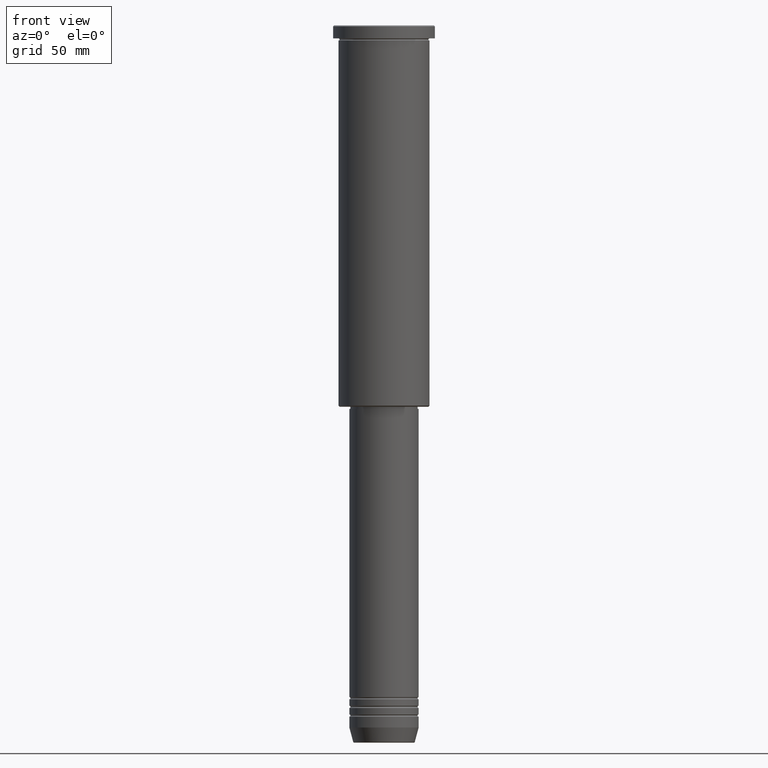
[diagram: clean part render]
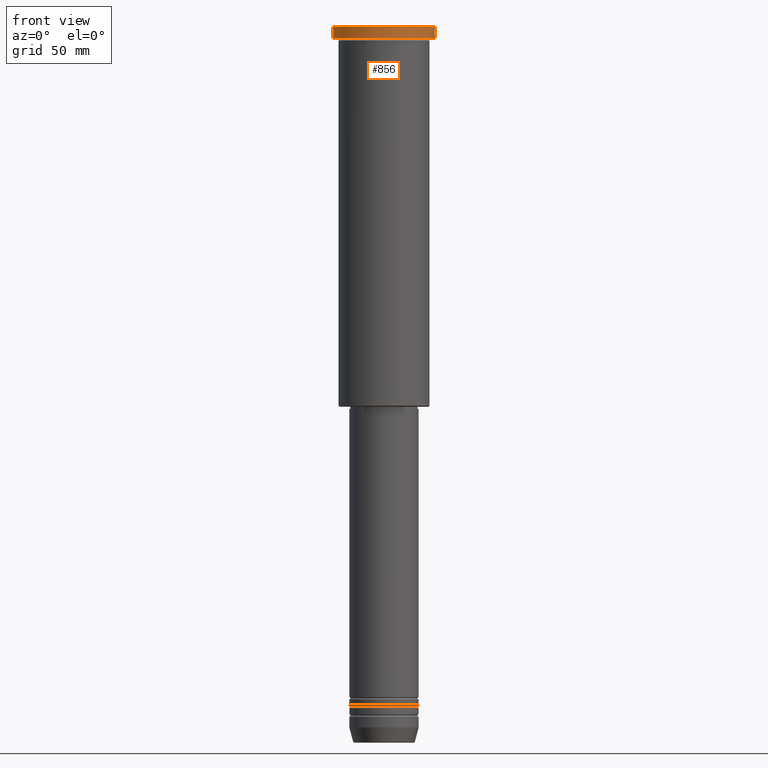
[diagram: same view with one face highlighted and labeled with its STEP entity id]
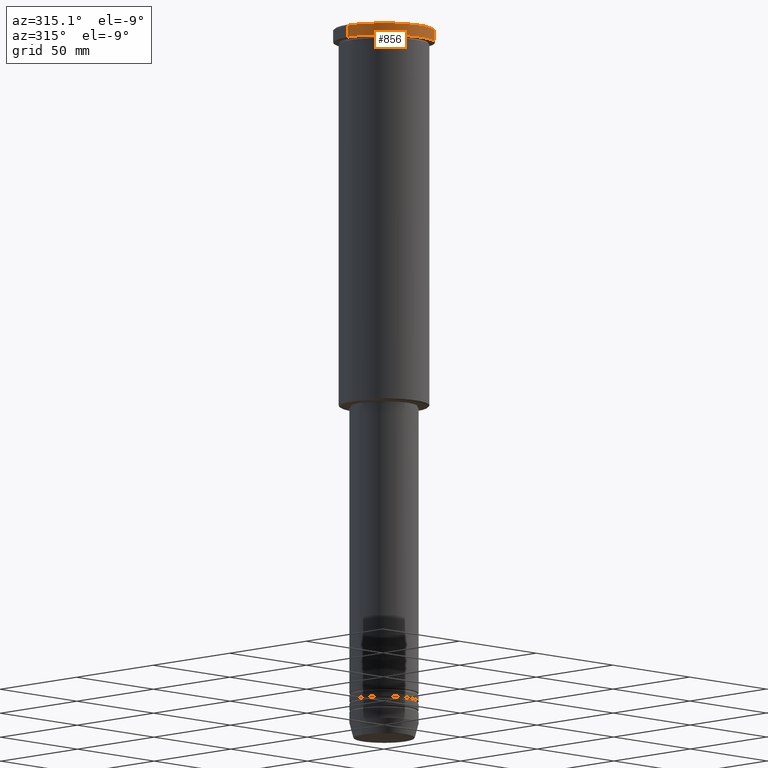
[diagram: same view with one face highlighted and labeled with its STEP entity id]
A machine part, front view. The second image highlights one B-rep face of the part: STEP entity #856.
A second angle (auxiliary view) of the same face is appended — the face is thin or edge-on in the first view.
In plain terms, the highlighted cylindrical surface (partial cylindrical patch) has radius 23.5 mm, axis along (-0, -0, 1).
Its self-contained STEP definition (entity closure, byte-faithful):
#18 = VERTEX_POINT ( 'NONE', #808 ) ;
#31 = CARTESIAN_POINT ( 'NONE',  ( -23.50000000000000000, 2.877919977996280320E-15, -0.5000000000000004441 ) ) ;
#49 = DIRECTION ( 'NONE',  ( 1.000000000000000000, 0.000000000000000000, 0.000000000000000000 ) ) ;
#117 = AXIS2_PLACEMENT_3D ( 'NONE', #412, #1045, #561 ) ;
#158 = EDGE_CURVE ( 'NONE', #1059, #1063, #687, .T. ) ;
#226 = VECTOR ( 'NONE', #928, 1000.000000000000000 ) ;
#305 = CYLINDRICAL_SURFACE ( 'NONE', #1167, 23.50000000000000000 ) ;
#345 = EDGE_LOOP ( 'NONE', ( #362, #857, #595, #538 ) ) ;
#362 = ORIENTED_EDGE ( 'NONE', *, *, #374, .F. ) ;
#374 = EDGE_CURVE ( 'NONE', #658, #1063, #1016, .T. ) ;
#401 = FACE_OUTER_BOUND ( 'NONE', #345, .T. ) ;
#412 = CARTESIAN_POINT ( 'NONE',  ( 0.000000000000000000, 0.000000000000000000, -5.999999999999993783 ) ) ;
#492 = DIRECTION ( 'NONE',  ( -0.000000000000000000, -0.000000000000000000, 1.000000000000000000 ) ) ;
#498 = DIRECTION ( 'NONE',  ( -0.000000000000000000, -0.000000000000000000, 1.000000000000000000 ) ) ;
#505 = VECTOR ( 'NONE', #498, 1000.000000000000000 ) ;
#538 = ORIENTED_EDGE ( 'NONE', *, *, #158, .T. ) ;
#561 = DIRECTION ( 'NONE',  ( 1.000000000000000000, 0.000000000000000000, 0.000000000000000000 ) ) ;
#595 = ORIENTED_EDGE ( 'NONE', *, *, #860, .T. ) ;
#623 = CARTESIAN_POINT ( 'NONE',  ( 0.000000000000000000, 0.000000000000000000, -0.5000000000000004441 ) ) ;
#658 = VERTEX_POINT ( 'NONE', #1044 ) ;
#687 = CIRCLE ( 'NONE', #864, 23.50000000000000000 ) ;
#747 = EDGE_CURVE ( 'NONE', #658, #18, #1130, .T. ) ;
#808 = CARTESIAN_POINT ( 'NONE',  ( 23.50000000000000000, 0.000000000000000000, -5.999999999999993783 ) ) ;
#855 = CARTESIAN_POINT ( 'NONE',  ( 23.50000000000000000, 0.000000000000000000, -0.5000000000000004441 ) ) ;
#856 = ADVANCED_FACE ( 'NONE', ( #401 ), #305, .T. ) ;
#857 = ORIENTED_EDGE ( 'NONE', *, *, #747, .T. ) ;
#860 = EDGE_CURVE ( 'NONE', #18, #1059, #880, .T. ) ;
#864 = AXIS2_PLACEMENT_3D ( 'NONE', #623, #900, #991 ) ;
#880 = LINE ( 'NONE', #960, #505 ) ;
#900 = DIRECTION ( 'NONE',  ( 0.000000000000000000, 0.000000000000000000, -1.000000000000000000 ) ) ;
#928 = DIRECTION ( 'NONE',  ( -0.000000000000000000, -0.000000000000000000, 1.000000000000000000 ) ) ;
#937 = CARTESIAN_POINT ( 'NONE',  ( 0.000000000000000000, 0.000000000000000000, 0.000000000000000000 ) ) ;
#960 = CARTESIAN_POINT ( 'NONE',  ( 23.50000000000000000, 0.000000000000000000, 0.000000000000000000 ) ) ;
#991 = DIRECTION ( 'NONE',  ( 1.000000000000000000, 0.000000000000000000, 0.000000000000000000 ) ) ;
#1008 = CARTESIAN_POINT ( 'NONE',  ( -23.50000000000000000, 2.877919977996280320E-15, 0.000000000000000000 ) ) ;
#1016 = LINE ( 'NONE', #1008, #226 ) ;
#1044 = CARTESIAN_POINT ( 'NONE',  ( -23.50000000000000000, 2.877919977996280320E-15, -5.999999999999993783 ) ) ;
#1045 = DIRECTION ( 'NONE',  ( -0.000000000000000000, -0.000000000000000000, 1.000000000000000000 ) ) ;
#1059 = VERTEX_POINT ( 'NONE', #855 ) ;
#1063 = VERTEX_POINT ( 'NONE', #31 ) ;
#1130 = CIRCLE ( 'NONE', #117, 23.50000000000000000 ) ;
#1167 = AXIS2_PLACEMENT_3D ( 'NONE', #937, #492, #49 ) ;